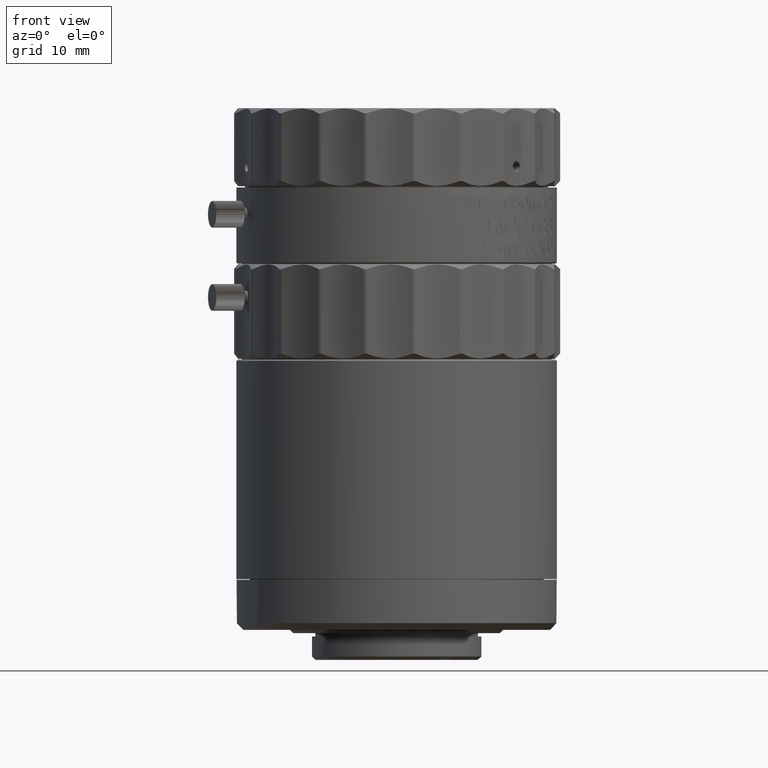
[diagram: clean part render]
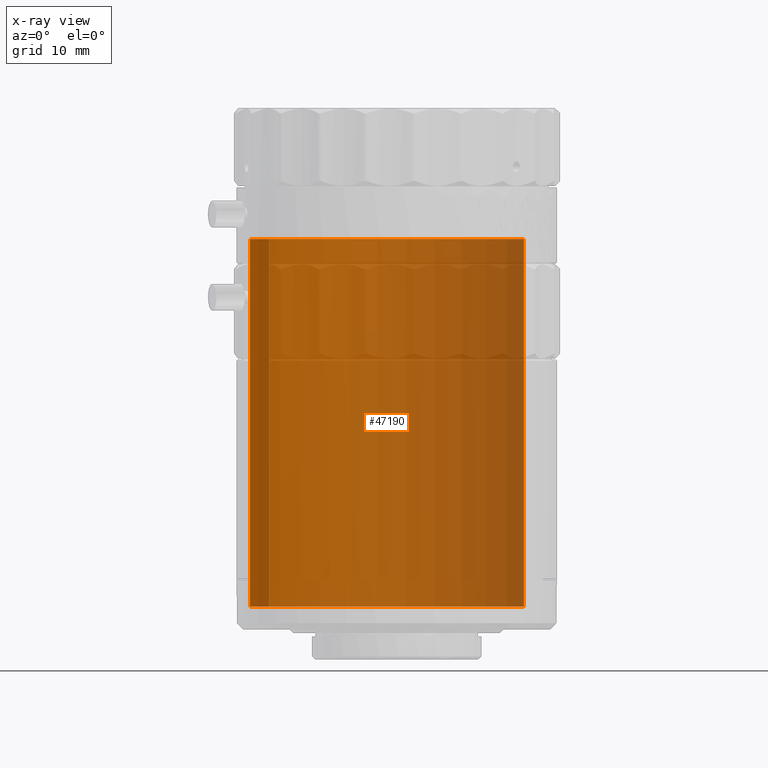
[diagram: x-ray — body ghosted, one internal face saturated and labeled with its STEP entity id]
A machine part, front view, then the same camera in x-ray: the body is ghosted and one INTERNAL B-rep face — a face not visible from any outside direction — is saturated and labeled: STEP entity #47190.
In plain terms, the highlighted cylindrical surface (partial cylindrical patch) has radius 22 mm, axis along (0, 0, 1).
Its self-contained STEP definition (entity closure, byte-faithful):
#387 = LINE ( 'NONE', #75912, #46802 ) ;
#13748 = CARTESIAN_POINT ( 'NONE',  ( 23.99999999549079988, 150.7964473440000006, -7.729999999999999538 ) ) ;
#17919 = AXIS2_PLACEMENT_3D ( 'NONE', #92303, #73892, #58743 ) ;
#18924 = DIRECTION ( 'NONE',  ( 0.000000000000000000, 0.000000000000000000, 1.000000000000000000 ) ) ;
#20571 = DIRECTION ( 'NONE',  ( 0.8657984707755860265, 0.5003928536686517159, 0.000000000000000000 ) ) ;
#30031 = DIRECTION ( 'NONE',  ( 0.000000000000000000, 0.000000000000000000, 1.000000000000000000 ) ) ;
#30062 = CARTESIAN_POINT ( 'NONE',  ( 23.99999999549079988, 150.7964473440000006, -62.72999999999999687 ) ) ;
#30785 = AXIS2_PLACEMENT_3D ( 'NONE', #30062, #98328, #20571 ) ;
#33613 = EDGE_CURVE ( 'NONE', #44272, #62161, #57319, .T. ) ;
#34401 = ORIENTED_EDGE ( 'NONE', *, *, #52503, .F. ) ;
#35278 = CIRCLE ( 'NONE', #54901, 22.00000000003739231 ) ;
#36932 = CARTESIAN_POINT ( 'NONE',  ( 4.952433638395508986, 139.7878045632709814, -62.72999999999999687 ) ) ;
#42654 = CARTESIAN_POINT ( 'NONE',  ( 43.04756635258606678, 161.8050901247290483, -7.729999999999999538 ) ) ;
#44272 = VERTEX_POINT ( 'NONE', #74621 ) ;
#46323 = FACE_OUTER_BOUND ( 'NONE', #81681, .T. ) ;
#46802 = VECTOR ( 'NONE', #102734, 1000.000000000000000 ) ;
#47190 = ADVANCED_FACE ( 'NONE', ( #46323 ), #104499, .T. ) ;
#52503 = EDGE_CURVE ( 'NONE', #44272, #88584, #103956, .T. ) ;
#54663 = DIRECTION ( 'NONE',  ( 0.8657984707755860265, 0.5003928536686517159, 0.000000000000000000 ) ) ;
#54901 = AXIS2_PLACEMENT_3D ( 'NONE', #13748, #30031, #54663 ) ;
#57319 = CIRCLE ( 'NONE', #17919, 22.00000000003739231 ) ;
#58743 = DIRECTION ( 'NONE',  ( 0.8657984707755860265, 0.5003928536686517159, 0.000000000000000000 ) ) ;
#61315 = CARTESIAN_POINT ( 'NONE',  ( 4.952433638395508986, 139.7878045632709814, -7.729999999999999538 ) ) ;
#61648 = ORIENTED_EDGE ( 'NONE', *, *, #89079, .F. ) ;
#62161 = VERTEX_POINT ( 'NONE', #36932 ) ;
#69932 = EDGE_CURVE ( 'NONE', #62161, #91500, #387, .T. ) ;
#73892 = DIRECTION ( 'NONE',  ( 0.000000000000000000, 0.000000000000000000, 1.000000000000000000 ) ) ;
#74621 = CARTESIAN_POINT ( 'NONE',  ( 43.04756635258606678, 161.8050901247290483, -62.72999999999999687 ) ) ;
#75912 = CARTESIAN_POINT ( 'NONE',  ( 4.952433638395523197, 139.7878045632709814, -62.72999999999999687 ) ) ;
#76214 = ORIENTED_EDGE ( 'NONE', *, *, #69932, .T. ) ;
#78250 = CARTESIAN_POINT ( 'NONE',  ( 43.04756635258606678, 161.8050901247290483, -62.72999999999999687 ) ) ;
#78454 = VECTOR ( 'NONE', #18924, 1000.000000000000000 ) ;
#81681 = EDGE_LOOP ( 'NONE', ( #86140, #76214, #61648, #34401 ) ) ;
#86140 = ORIENTED_EDGE ( 'NONE', *, *, #33613, .T. ) ;
#88584 = VERTEX_POINT ( 'NONE', #42654 ) ;
#89079 = EDGE_CURVE ( 'NONE', #88584, #91500, #35278, .T. ) ;
#91500 = VERTEX_POINT ( 'NONE', #61315 ) ;
#92303 = CARTESIAN_POINT ( 'NONE',  ( 23.99999999549079988, 150.7964473440000006, -62.72999999999999687 ) ) ;
#98328 = DIRECTION ( 'NONE',  ( 0.000000000000000000, 0.000000000000000000, 1.000000000000000000 ) ) ;
#102734 = DIRECTION ( 'NONE',  ( 0.000000000000000000, 0.000000000000000000, 1.000000000000000000 ) ) ;
#103956 = LINE ( 'NONE', #78250, #78454 ) ;
#104499 = CYLINDRICAL_SURFACE ( 'NONE', #30785, 22.00000000003739231 ) ;